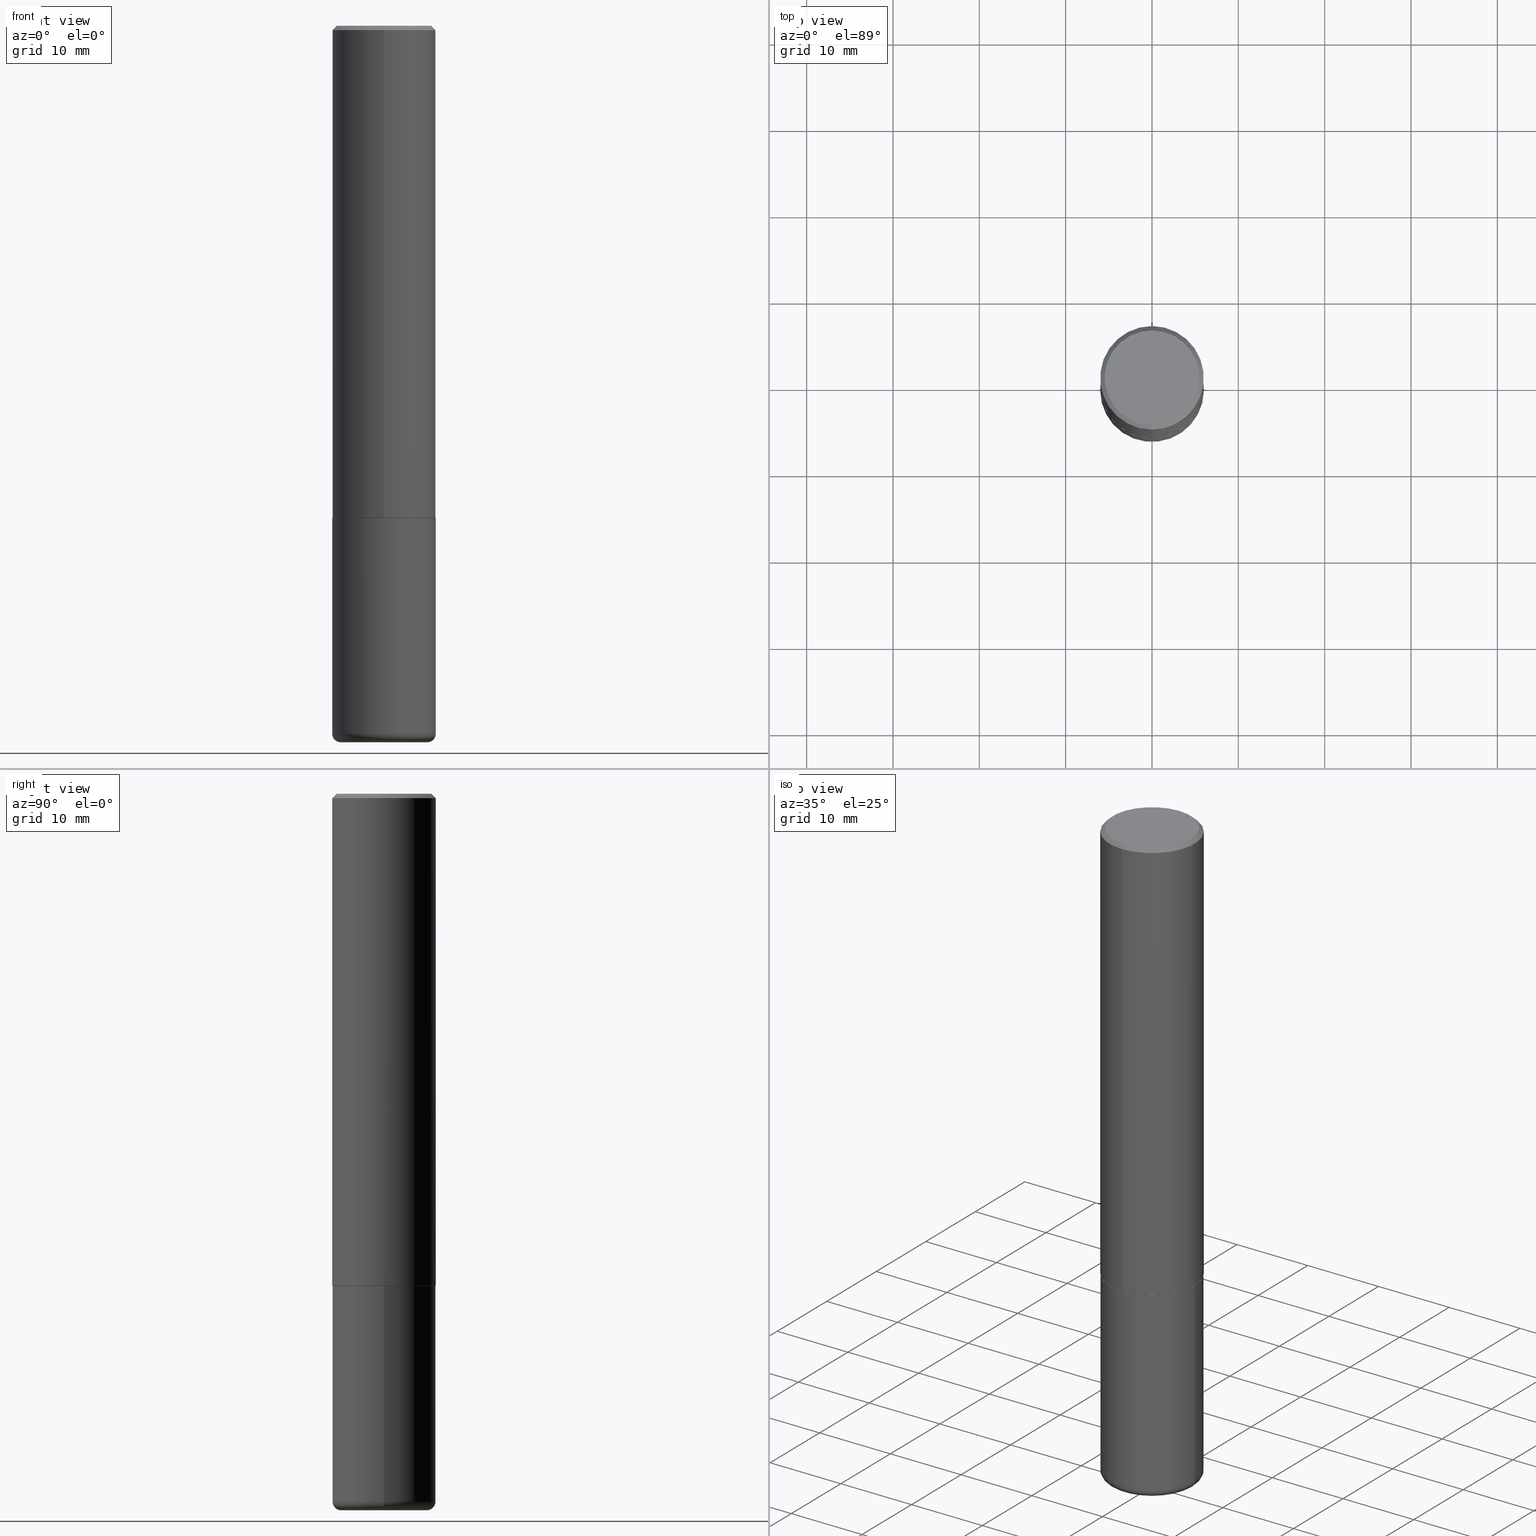
[diagram: canonical four-view strip — front | top / right | iso, engineering-drawing reading convention]
A machine part, canonical four-view strip (front | top / right | iso — engineering-drawing reading convention). The complete STEP part file that produces these views, byte-faithful:
ISO-10303-21;
HEADER;
FILE_DESCRIPTION (( 'STEP AP203' ),
    '1' );
FILE_NAME ('47130.STEP',
    '2024-03-05T21:50:02',
    ( '' ),
    ( '' ),
    'SwSTEP 2.0',
    'SolidWorks 2023',
    '' );
FILE_SCHEMA (( 'CONFIG_CONTROL_DESIGN' ));
ENDSEC;

DATA;
#1 = CARTESIAN_POINT ( 'NONE',  ( 5.484877041441908919E-29, -7.832535204696471708E-15, -2.243100000000000094 ) ) ;
#2 = EDGE_CURVE ( 'NONE', #218, #236, #267, .T. ) ;
#3 = CARTESIAN_POINT ( 'NONE',  ( -1.649375784469497117E-15, -0.2362000000000001598, 8.247714392355702416E-16 ) ) ;
#4 = AXIS2_PLACEMENT_3D ( 'NONE', #171, #114, #110 ) ;
#5 = DIRECTION ( 'NONE',  ( -6.982962677686265922E-15, -1.000000000000000000, 3.487819265831410167E-15 ) ) ;
#6 = DIRECTION ( 'NONE',  ( -2.445468806185136597E-29, 3.491481338843145583E-15, 1.000000000000000000 ) ) ;
#7 = ORIENTED_EDGE ( 'NONE', *, *, #96, .T. ) ;
#8 = DIRECTION ( 'NONE',  ( -2.445468806185136597E-29, 3.491481338843145583E-15, 1.000000000000000000 ) ) ;
#9 = AXIS2_PLACEMENT_3D ( 'NONE', #238, #6, #273 ) ;
#10 = ORIENTED_EDGE ( 'NONE', *, *, #332, .F. ) ;
#11 = DIRECTION ( 'NONE',  ( 1.000000000000000000, -6.982962677686269077E-15, 0.000000000000000000 ) ) ;
#12 = PRODUCT_DEFINITION ( 'UNKNOWN', '', #199, #276 ) ;
#13 = ORIENTED_EDGE ( 'NONE', *, *, #261, .F. ) ;
#14 = CARTESIAN_POINT ( 'NONE',  ( 0.2361999999999999933, -9.484609056967400443E-15, -2.244100000000000428 ) ) ;
#15 = ORIENTED_EDGE ( 'NONE', *, *, #278, .F. ) ;
#16 = ADVANCED_FACE ( 'NONE', ( #102 ), #63, .T. ) ;
#17 = LOCAL_TIME ( 16, 50, 2.000000000000000000, #227 ) ;
#18 = DIRECTION ( 'NONE',  ( 1.000000000000000000, 0.000000000000000000, 0.000000000000000000 ) ) ;
#19 = CARTESIAN_POINT ( 'NONE',  ( 5.487876547960065873E-29, -7.835233272497903917E-15, -2.244100000000000428 ) ) ;
#20 = SECURITY_CLASSIFICATION_LEVEL ( 'unclassified' ) ;
#21 = ORIENTED_EDGE ( 'NONE', *, *, #186, .T. ) ;
#22 = ADVANCED_FACE ( 'NONE', ( #228 ), #194, .T. ) ;
#23 = APPROVAL_DATE_TIME ( #387, #394 ) ;
#24 = DIRECTION ( 'NONE',  ( 1.000000000000000000, -6.982962677686267499E-15, 0.000000000000000000 ) ) ;
#25 = DATE_AND_TIME ( #91, #231 ) ;
#26 = DIRECTION ( 'NONE',  ( -2.445221809746292518E-29, 3.491835051801734308E-15, 1.000000000000000000 ) ) ;
#27 = LINE ( 'NONE', #163, #112 ) ;
#28 = ADVANCED_FACE ( 'NONE', ( #417 ), #162, .T. ) ;
#29 = AXIS2_PLACEMENT_3D ( 'NONE', #367, #201, #329 ) ;
#30 = DIRECTION ( 'NONE',  ( -2.445468806185136597E-29, 3.491481338843145583E-15, 1.000000000000000000 ) ) ;
#31 = DIRECTION ( 'NONE',  ( 2.445221809746291958E-29, -3.491835051801734702E-15, -1.000000000000000000 ) ) ;
#32 = PLANE ( 'NONE',  #184 ) ;
#33 = LINE ( 'NONE', #68, #271 ) ;
#34 = VECTOR ( 'NONE', #300, 39.37007874015748143 ) ;
#35 = DIRECTION ( 'NONE',  ( -2.445221809746292518E-29, 3.491835051801734702E-15, 1.000000000000000000 ) ) ;
#36 = ORIENTED_EDGE ( 'NONE', *, *, #125, .F. ) ;
#37 = DIRECTION ( 'NONE',  ( -2.445468806185136597E-29, 3.491481338843145583E-15, 1.000000000000000000 ) ) ;
#38 = ORIENTED_EDGE ( 'NONE', *, *, #155, .T. ) ;
#39 = CARTESIAN_POINT ( 'NONE',  ( -0.2362000000000000210, -9.593247264321970832E-15, -3.228299999999999947 ) ) ;
#40 = CONICAL_SURFACE ( 'NONE', #29, 0.2362000000000000766, 0.7853981633974480570 ) ;
#41 = ORIENTED_EDGE ( 'NONE', *, *, #195, .T. ) ;
#42 = APPLICATION_PROTOCOL_DEFINITION ( 'international standard', 'config_control_design', 1994, #128 ) ;
#43 = ADVANCED_FACE ( 'NONE', ( #299 ), #58, .T. ) ;
#44 = VERTEX_POINT ( 'NONE', #95 ) ;
#45 = DIRECTION ( 'NONE',  ( -2.445221809746292518E-29, 3.491835051801734308E-15, 1.000000000000000000 ) ) ;
#46 = APPLICATION_CONTEXT ( 'configuration controlled 3d designs of mechanical parts and assemblies' ) ;
#47 = CC_DESIGN_PERSON_AND_ORGANIZATION_ASSIGNMENT ( #324, #136, ( #12 ) ) ;
#48 = MECHANICAL_CONTEXT ( 'NONE', #128, 'mechanical' ) ;
#49 = UNCERTAINTY_MEASURE_WITH_UNIT (LENGTH_MEASURE( 1.000000000000000082E-05 ), #253, 'distance_accuracy_value', 'NONE');
#50 = VECTOR ( 'NONE', #175, 39.37007874015748143 ) ;
#51 = AXIS2_PLACEMENT_3D ( 'NONE', #404, #212, #78 ) ;
#52 = DIRECTION ( 'NONE',  ( -2.445221809746292518E-29, 3.491835051801734308E-15, 1.000000000000000000 ) ) ;
#53 = LINE ( 'NONE', #314, #216 ) ;
#54 = ORIENTED_EDGE ( 'NONE', *, *, #178, .F. ) ;
#55 = DATE_TIME_ROLE ( 'creation_date' ) ;
#56 = EDGE_CURVE ( 'NONE', #303, #388, #88, .T. ) ;
#57 = FACE_OUTER_BOUND ( 'NONE', #151, .T. ) ;
#58 = CONICAL_SURFACE ( 'NONE', #69, 0.2351999999999999924, 0.7853981633976873100 ) ;
#59 = CC_DESIGN_APPROVAL ( #394, ( #192 ) ) ;
#60 = APPROVAL_ROLE ( '' ) ;
#61 = CARTESIAN_POINT ( 'NONE',  ( 0.000000000000000000, 0.000000000000000000, 0.000000000000000000 ) ) ;
#62 = DATE_AND_TIME ( #349, #237 ) ;
#63 = PLANE ( 'NONE',  #159 ) ;
#64 = CARTESIAN_POINT ( 'NONE',  ( 4.890443619492597157E-31, -6.983670103603485970E-17, -0.02000000000000005246 ) ) ;
#65 = FACE_OUTER_BOUND ( 'NONE', #370, .T. ) ;
#66 = CARTESIAN_POINT ( 'NONE',  ( -1.649375784469443080E-15, -0.2362000000000080979, -2.243099999999999206 ) ) ;
#67 = CARTESIAN_POINT ( 'NONE',  ( 7.894706947007477118E-29, -1.127154920618732880E-14, -3.228299999999999947 ) ) ;
#68 = CARTESIAN_POINT ( 'NONE',  ( -1.642392821791754699E-15, -0.2352000000000078195, -2.244099999999999095 ) ) ;
#69 = AXIS2_PLACEMENT_3D ( 'NONE', #290, #350, #132 ) ;
#70 = AXIS2_PLACEMENT_3D ( 'NONE', #375, #343, #18 ) ;
#71 = ORIENTED_EDGE ( 'NONE', *, *, #96, .F. ) ;
#72 = ADVANCED_FACE ( 'NONE', ( #57 ), #307, .T. ) ;
#73 = CARTESIAN_POINT ( 'NONE',  ( 5.487322263251655570E-29, -7.836027039748271518E-15, -2.244099999999999984 ) ) ;
#74 = ORIENTED_EDGE ( 'NONE', *, *, #108, .T. ) ;
#75 = EDGE_CURVE ( 'NONE', #89, #303, #137, .T. ) ;
#76 = FACE_OUTER_BOUND ( 'NONE', #146, .T. ) ;
#77 = ORIENTED_EDGE ( 'NONE', *, *, #203, .F. ) ;
#78 = DIRECTION ( 'NONE',  ( -6.982962677686265133E-15, -1.000000000000000000, 3.484499991918703113E-15 ) ) ;
#79 = EDGE_CURVE ( 'NONE', #236, #388, #27, .T. ) ;
#80 = AXIS2_PLACEMENT_3D ( 'NONE', #280, #182, #282 ) ;
#81 = EDGE_LOOP ( 'NONE', ( #54, #99, #270, #113 ) ) ;
#82 = DIRECTION ( 'NONE',  ( -2.445468806185136877E-29, 3.491481338843145188E-15, 1.000000000000000000 ) ) ;
#83 = ADVANCED_FACE ( 'NONE', ( #193 ), #167, .T. ) ;
#84 = ADVANCED_BREP_SHAPE_REPRESENTATION ( '47130', ( #372, #93, #70 ), #217 ) ;
#85 = FACE_OUTER_BOUND ( 'NONE', #208, .T. ) ;
#86 = CARTESIAN_POINT ( 'NONE',  ( 7.894706947007477118E-29, -1.127154920618732880E-14, -3.228299999999999947 ) ) ;
#87 = TOROIDAL_SURFACE ( 'NONE', #312, 0.1968000000000000027, 0.03940000000000005997 ) ;
#88 = CIRCLE ( 'NONE', #413, 0.2362000000000000766 ) ;
#89 = VERTEX_POINT ( 'NONE', #263 ) ;
#90 = ADVANCED_FACE ( 'NONE', ( #65 ), #200, .F. ) ;
#91 = CALENDAR_DATE ( 2024, 5, 3 ) ;
#92 = CARTESIAN_POINT ( 'NONE',  ( 7.991058417971171713E-29, -1.140911357093774644E-14, -3.267700000000000049 ) ) ;
#93 = MANIFOLD_SOLID_BREP ( 'Body-Move/Copy2[2]', #223 ) ;
#94 = PERSON_AND_ORGANIZATION ( #214, #141 ) ;
#95 = CARTESIAN_POINT ( 'NONE',  ( 0.1968000000000000027, -1.278336062590640454E-14, -3.267700000000000049 ) ) ;
#96 = EDGE_CURVE ( 'NONE', #44, #283, #198, .T. ) ;
#97 = AXIS2_PLACEMENT_3D ( 'NONE', #411, #104, #356 ) ;
#98 = AXIS2_PLACEMENT_3D ( 'NONE', #19, #153, #11 ) ;
#99 = ORIENTED_EDGE ( 'NONE', *, *, #248, .T. ) ;
#100 = EDGE_CURVE ( 'NONE', #407, #236, #160, .T. ) ;
#101 = SHAPE_DEFINITION_REPRESENTATION ( #245, #84 ) ;
#102 = FACE_OUTER_BOUND ( 'NONE', #241, .T. ) ;
#103 = PERSON_AND_ORGANIZATION ( #214, #141 ) ;
#104 = DIRECTION ( 'NONE',  ( -2.445221809746292518E-29, 3.491835051801734308E-15, 1.000000000000000000 ) ) ;
#105 = AXIS2_PLACEMENT_3D ( 'NONE', #67, #330, #202 ) ;
#106 = LOCAL_TIME ( 16, 50, 2.000000000000000000, #289 ) ;
#107 = FACE_OUTER_BOUND ( 'NONE', #258, .T. ) ;
#108 = EDGE_CURVE ( 'NONE', #166, #218, #33, .T. ) ;
#109 = DIRECTION ( 'NONE',  ( -2.445221809746291958E-29, 3.491835051801734702E-15, 1.000000000000000000 ) ) ;
#110 = DIRECTION ( 'NONE',  ( -1.000000000000000000, 6.982962677686265922E-15, -4.876176775795935793E-29 ) ) ;
#111 = FACE_OUTER_BOUND ( 'NONE', #130, .T. ) ;
#112 = VECTOR ( 'NONE', #265, 39.37007874015748143 ) ;
#113 = ORIENTED_EDGE ( 'NONE', *, *, #359, .F. ) ;
#114 = DIRECTION ( 'NONE',  ( 2.438088387897960049E-29, -3.491481338843145188E-15, -1.000000000000000000 ) ) ;
#115 = ORIENTED_EDGE ( 'NONE', *, *, #168, .T. ) ;
#116 = CARTESIAN_POINT ( 'NONE',  ( 1.579546157692633621E-15, 0.2161999999999999478, -6.694880156558795861E-16 ) ) ;
#117 = ORIENTED_EDGE ( 'NONE', *, *, #2, .T. ) ;
#118 = CC_DESIGN_PERSON_AND_ORGANIZATION_ASSIGNMENT ( #103, #293, ( #199 ) ) ;
#119 = AXIS2_PLACEMENT_3D ( 'NONE', #61, #30, #127 ) ;
#120 = DIRECTION ( 'NONE',  ( -1.000000000000000000, 7.105427357601014480E-15, 0.000000000000000000 ) ) ;
#121 = CARTESIAN_POINT ( 'NONE',  ( 7.894706947007477118E-29, -1.127154920618732880E-14, -3.228299999999999947 ) ) ;
#122 = EDGE_CURVE ( 'NONE', #348, #388, #142, .T. ) ;
#123 = CARTESIAN_POINT ( 'NONE',  ( -2.089361895350857775E-45, 2.983658608395124733E-31, 8.544672254365514246E-17 ) ) ;
#124 = ORIENTED_EDGE ( 'NONE', *, *, #122, .T. ) ;
#125 = EDGE_CURVE ( 'NONE', #218, #303, #390, .T. ) ;
#126 = CC_DESIGN_APPROVAL ( #172, ( #199 ) ) ;
#127 = DIRECTION ( 'NONE',  ( 1.000000000000000000, -6.982962677686266711E-15, 4.876176775795936353E-29 ) ) ;
#128 = APPLICATION_CONTEXT ( 'configuration controlled 3d designs of mechanical parts and assemblies' ) ;
#129 = PERSON_AND_ORGANIZATION_ROLE ( 'design_owner' ) ;
#130 = EDGE_LOOP ( 'NONE', ( #15, #149, #365, #156 ) ) ;
#131 = CALENDAR_DATE ( 2024, 5, 3 ) ;
#132 = DIRECTION ( 'NONE',  ( -6.982962677686265133E-15, -1.000000000000000000, 3.484499991918703113E-15 ) ) ;
#133 = APPROVAL_PERSON_ORGANIZATION ( #165, #346, #60 ) ;
#134 = DATE_AND_TIME ( #297, #106 ) ;
#135 = DIRECTION ( 'NONE',  ( -6.982962677686265922E-15, -1.000000000000000000, 3.491835051801734308E-15 ) ) ;
#136 = PERSON_AND_ORGANIZATION_ROLE ( 'creator' ) ;
#137 = LINE ( 'NONE', #260, #331 ) ;
#138 = DIRECTION ( 'NONE',  ( -6.982962677686265922E-15, -1.000000000000000000, 3.469747663417773058E-15 ) ) ;
#139 = ADVANCED_FACE ( 'NONE', ( #76 ), #362, .T. ) ;
#140 = AXIS2_PLACEMENT_3D ( 'NONE', #328, #31, #256 ) ;
#141 = ORGANIZATION ( 'UNSPECIFIED', 'UNSPECIFIED', '' ) ;
#142 = LINE ( 'NONE', #399, #50 ) ;
#143 = EDGE_CURVE ( 'NONE', #388, #303, #272, .T. ) ;
#144 = PLANE ( 'NONE',  #4 ) ;
#145 = DIRECTION ( 'NONE',  ( -2.445221809746292518E-29, 3.491835051801734308E-15, 1.000000000000000000 ) ) ;
#146 = EDGE_LOOP ( 'NONE', ( #179, #298, #286, #13 ) ) ;
#147 = LINE ( 'NONE', #338, #351 ) ;
#148 = CIRCLE ( 'NONE', #185, 0.03940000000000005997 ) ;
#149 = ORIENTED_EDGE ( 'NONE', *, *, #75, .T. ) ;
#150 = CARTESIAN_POINT ( 'NONE',  ( 1.649375784469496920E-15, 0.2361999999999999933, -0.02000000000000087472 ) ) ;
#151 = EDGE_LOOP ( 'NONE', ( #402, #355, #124, #274 ) ) ;
#152 = ADVANCED_FACE ( 'NONE', ( #107 ), #87, .T. ) ;
#153 = DIRECTION ( 'NONE',  ( -2.445468806185136597E-29, 3.491481338843145583E-15, 1.000000000000000000 ) ) ;
#154 = ADVANCED_FACE ( 'NONE', ( #235 ), #144, .F. ) ;
#155 = EDGE_CURVE ( 'NONE', #44, #210, #262, .T. ) ;
#156 = ORIENTED_EDGE ( 'NONE', *, *, #122, .F. ) ;
#157 = PERSON_AND_ORGANIZATION ( #214, #141 ) ;
#158 = ORIENTED_EDGE ( 'NONE', *, *, #418, .F. ) ;
#159 = AXIS2_PLACEMENT_3D ( 'NONE', #92, #352, #323 ) ;
#160 = LINE ( 'NONE', #409, #34 ) ;
#161 = APPLICATION_PROTOCOL_DEFINITION ( 'international standard', 'config_control_design', 1994, #46 ) ;
#162 = CYLINDRICAL_SURFACE ( 'NONE', #119, 0.2361999999999999933 ) ;
#163 = CARTESIAN_POINT ( 'NONE',  ( 1.678301941865357577E-15, 0.2362000000000001598, -8.247714392355702416E-16 ) ) ;
#164 = CIRCLE ( 'NONE', #230, 0.2362000000000002709 ) ;
#165 = PERSON_AND_ORGANIZATION ( #214, #141 ) ;
#166 = VERTEX_POINT ( 'NONE', #240 ) ;
#167 = CYLINDRICAL_SURFACE ( 'NONE', #377, 0.2362000000000001598 ) ;
#168 = EDGE_CURVE ( 'NONE', #210, #44, #364, .T. ) ;
#169 = CARTESIAN_POINT ( 'NONE',  ( 5.487322263251655570E-29, -7.836027039748273096E-15, -2.244100000000000428 ) ) ;
#170 = AXIS2_PLACEMENT_3D ( 'NONE', #73, #145, #268 ) ;
#171 = CARTESIAN_POINT ( 'NONE',  ( 5.487876547960065873E-29, -7.835233272497903917E-15, -2.244100000000000428 ) ) ;
#172 = APPROVAL ( #408, 'UNSPECIFIED' ) ;
#173 = CARTESIAN_POINT ( 'NONE',  ( 4.890443619492597157E-31, -6.983670103603485970E-17, -0.02000000000000005246 ) ) ;
#174 = ORIENTED_EDGE ( 'NONE', *, *, #195, .F. ) ;
#175 = DIRECTION ( 'NONE',  ( 4.937700262164546464E-15, 0.7071067811865449082, -0.7071067811865501263 ) ) ;
#176 = EDGE_LOOP ( 'NONE', ( #38, #321, #158, #71 ) ) ;
#177 = CARTESIAN_POINT ( 'NONE',  ( -2.089361895350857775E-45, 2.983658608395124733E-31, 8.544672254365514246E-17 ) ) ;
#178 = EDGE_CURVE ( 'NONE', #181, #405, #147, .T. ) ;
#179 = ORIENTED_EDGE ( 'NONE', *, *, #418, .T. ) ;
#180 = CARTESIAN_POINT ( 'NONE',  ( 1.674749228186611702E-15, 0.2351999999999921653, -2.244100000000000872 ) ) ;
#181 = VERTEX_POINT ( 'NONE', #39 ) ;
#182 = DIRECTION ( 'NONE',  ( -2.445468806185136597E-29, 3.491481338843145583E-15, 1.000000000000000000 ) ) ;
#183 = CARTESIAN_POINT ( 'NONE',  ( -1.620449627073635473E-15, -0.2362000000000001321, -0.01999999999999922673 ) ) ;
#184 = AXIS2_PLACEMENT_3D ( 'NONE', #169, #109, #233 ) ;
#185 = AXIS2_PLACEMENT_3D ( 'NONE', #311, #247, #120 ) ;
#186 = EDGE_CURVE ( 'NONE', #348, #89, #279, .T. ) ;
#187 = DIRECTION ( 'NONE',  ( -6.982962677686265133E-15, -1.000000000000000000, 3.484499991918703113E-15 ) ) ;
#188 = ORIENTED_EDGE ( 'NONE', *, *, #344, .T. ) ;
#189 = PERSON_AND_ORGANIZATION_ROLE ( 'classification_officer' ) ;
#190 = CARTESIAN_POINT ( 'NONE',  ( 0.1968000000000000027, -1.264579626115598374E-14, -3.228299999999999947 ) ) ;
#191 = AXIS2_PLACEMENT_3D ( 'NONE', #269, #393, #369 ) ;
#192 = SECURITY_CLASSIFICATION ( '', '', #20 ) ;
#193 = FACE_OUTER_BOUND ( 'NONE', #306, .T. ) ;
#194 = CYLINDRICAL_SURFACE ( 'NONE', #97, 0.2362000000000001598 ) ;
#195 = EDGE_CURVE ( 'NONE', #407, #166, #406, .T. ) ;
#196 = DATE_TIME_ROLE ( 'classification_date' ) ;
#197 = CARTESIAN_POINT ( 'NONE',  ( 4.890443619492597157E-31, -6.983670103603485970E-17, -0.02000000000000005246 ) ) ;
#198 = CIRCLE ( 'NONE', #373, 0.03940000000000005997 ) ;
#199 = PRODUCT_DEFINITION_FORMATION_WITH_SPECIFIED_SOURCE ( 'ANY', '', #275, .NOT_KNOWN. ) ;
#200 = PLANE ( 'NONE',  #140 ) ;
#201 = DIRECTION ( 'NONE',  ( 2.445221809746292518E-29, -3.491835051801734308E-15, -1.000000000000000000 ) ) ;
#202 = DIRECTION ( 'NONE',  ( 1.000000000000000000, -6.982962677686265133E-15, 0.000000000000000000 ) ) ;
#203 = EDGE_CURVE ( 'NONE', #236, #218, #164, .T. ) ;
#204 = AXIS2_PLACEMENT_3D ( 'NONE', #229, #225, #357 ) ;
#205 = DIRECTION ( 'NONE',  ( -6.982962677686265922E-15, -1.000000000000000000, 3.491835051801733913E-15 ) ) ;
#206 = ORIENTED_EDGE ( 'NONE', *, *, #203, .T. ) ;
#207 = DIRECTION ( 'NONE',  ( -4.937700262165728178E-15, -0.7071067811867141062, 0.7071067811863809283 ) ) ;
#208 = EDGE_LOOP ( 'NONE', ( #371, #400, #277, #342 ) ) ;
#209 = DIRECTION ( 'NONE',  ( 1.000000000000000000, -6.982962677686271444E-15, 0.000000000000000000 ) ) ;
#210 = VERTEX_POINT ( 'NONE', #266 ) ;
#211 = ORIENTED_EDGE ( 'NONE', *, *, #79, .F. ) ;
#212 = DIRECTION ( 'NONE',  ( -2.445221809746292518E-29, 3.491835051801734308E-15, 1.000000000000000000 ) ) ;
#213 = LENGTH_MEASURE_WITH_UNIT ( LENGTH_MEASURE( 0.02539999999999999897 ), #341 );
#214 = PERSON ( 'UNSPECIFIED', 'UNSPECIFIED', 'UNSPECIFIED', ('UNSPECIFIED'), ('UNSPECIFIED'), ('UNSPECIFIED') ) ;
#215 = CARTESIAN_POINT ( 'NONE',  ( -0.2361999999999999933, -7.875089297477259967E-15, -2.244100000000000428 ) ) ;
#216 = VECTOR ( 'NONE', #82, 39.37007874015748143 ) ;
#217 =( GEOMETRIC_REPRESENTATION_CONTEXT ( 3 ) GLOBAL_UNCERTAINTY_ASSIGNED_CONTEXT ( ( #49 ) ) GLOBAL_UNIT_ASSIGNED_CONTEXT ( ( #253, #242, #378 ) ) REPRESENTATION_CONTEXT ( 'NONE', 'WORKASPACE' ) );
#218 = VERTEX_POINT ( 'NONE', #66 ) ;
#219 = COORDINATED_UNIVERSAL_TIME_OFFSET ( 5, 0, .BEHIND. ) ;
#220 = ORIENTED_EDGE ( 'NONE', *, *, #143, .F. ) ;
#221 = CC_DESIGN_PERSON_AND_ORGANIZATION_ASSIGNMENT ( #259, #129, ( #275 ) ) ;
#222 = DIRECTION ( 'NONE',  ( 6.982962677686265922E-15, 1.000000000000000000, -3.487819265831410167E-15 ) ) ;
#223 = CLOSED_SHELL ( 'NONE', ( #415, #22, #226, #72, #83, #43, #234, #90 ) ) ;
#224 = PERSON_AND_ORGANIZATION_ROLE ( 'design_supplier' ) ;
#225 = DIRECTION ( 'NONE',  ( -2.445221809746292518E-29, 3.491835051801734308E-15, 1.000000000000000000 ) ) ;
#226 = ADVANCED_FACE ( 'NONE', ( #111 ), #40, .T. ) ;
#227 = COORDINATED_UNIVERSAL_TIME_OFFSET ( 5, 0, .BEHIND. ) ;
#228 = FACE_OUTER_BOUND ( 'NONE', #335, .T. ) ;
#229 = CARTESIAN_POINT ( 'NONE',  ( 5.484877041441908919E-29, -7.832535204696471708E-15, -2.243100000000000094 ) ) ;
#230 = AXIS2_PLACEMENT_3D ( 'NONE', #1, #395, #138 ) ;
#231 = LOCAL_TIME ( 16, 50, 2.000000000000000000, #412 ) ;
#232 = DIRECTION ( 'NONE',  ( 1.000000000000000000, -6.982962677686270655E-15, 4.883557194083114583E-29 ) ) ;
#233 = DIRECTION ( 'NONE',  ( -6.982962677686265922E-15, -1.000000000000000000, 3.491835051801734702E-15 ) ) ;
#234 = ADVANCED_FACE ( 'NONE', ( #392 ), #32, .F. ) ;
#235 = FACE_OUTER_BOUND ( 'NONE', #309, .T. ) ;
#236 = VERTEX_POINT ( 'NONE', #361 ) ;
#237 = LOCAL_TIME ( 16, 50, 2.000000000000000000, #257 ) ;
#238 = CARTESIAN_POINT ( 'NONE',  ( 0.000000000000000000, 0.000000000000000000, 0.000000000000000000 ) ) ;
#239 = ORIENTED_EDGE ( 'NONE', *, *, #125, .T. ) ;
#240 = CARTESIAN_POINT ( 'NONE',  ( -1.642392821791754699E-15, -0.2352000000000078195, -2.244099999999999095 ) ) ;
#241 = EDGE_LOOP ( 'NONE', ( #255, #317 ) ) ;
#242 =( NAMED_UNIT ( * ) PLANE_ANGLE_UNIT ( ) SI_UNIT ( $, .RADIAN. ) );
#243 = DIMENSIONAL_EXPONENTS ( 1.000000000000000000, 0.000000000000000000, 0.000000000000000000, 0.000000000000000000, 0.000000000000000000, 0.000000000000000000, 0.000000000000000000 ) ;
#244 = EDGE_LOOP ( 'NONE', ( #383, #41, #74, #77 ) ) ;
#245 = PRODUCT_DEFINITION_SHAPE ( 'NONE', 'NONE',  #12 ) ;
#246 = VECTOR ( 'NONE', #35, 39.37007874015748143 ) ;
#247 = DIRECTION ( 'NONE',  ( 7.105427357601001859E-15, 1.000000000000000000, -3.491481338843145583E-15 ) ) ;
#248 = EDGE_CURVE ( 'NONE', #181, #283, #285, .T. ) ;
#249 = CC_DESIGN_SECURITY_CLASSIFICATION ( #192, ( #199 ) ) ;
#250 = DIRECTION ( 'NONE',  ( -2.445468806185136597E-29, 3.491481338843145583E-15, 1.000000000000000000 ) ) ;
#251 = ADVANCED_FACE ( 'NONE', ( #347 ), #396, .T. ) ;
#252 = CARTESIAN_POINT ( 'NONE',  ( 5.487322263251655570E-29, -7.836027039748271518E-15, -2.244099999999999984 ) ) ;
#253 =( CONVERSION_BASED_UNIT ( 'INCH', #213 ) LENGTH_UNIT ( ) NAMED_UNIT ( #243 ) );
#254 = AXIS2_PLACEMENT_3D ( 'NONE', #173, #336, #5 ) ;
#255 = ORIENTED_EDGE ( 'NONE', *, *, #155, .F. ) ;
#256 = DIRECTION ( 'NONE',  ( 6.982962677686265922E-15, 1.000000000000000000, -3.491835051801734702E-15 ) ) ;
#257 = COORDINATED_UNIVERSAL_TIME_OFFSET ( 5, 0, .BEHIND. ) ;
#258 = EDGE_LOOP ( 'NONE', ( #10, #115, #7, #292 ) ) ;
#259 = PERSON_AND_ORGANIZATION ( #214, #141 ) ;
#260 = CARTESIAN_POINT ( 'NONE',  ( -1.620449627073635473E-15, -0.2362000000000001321, -0.01999999999999922673 ) ) ;
#261 = EDGE_CURVE ( 'NONE', #283, #325, #53, .T. ) ;
#262 = CIRCLE ( 'NONE', #295, 0.1968000000000000027 ) ;
#263 = CARTESIAN_POINT ( 'NONE',  ( -1.551844647095920142E-15, -0.2161999999999999478, 8.403814607431897971E-16 ) ) ;
#264 = PERSON_AND_ORGANIZATION ( #214, #141 ) ;
#265 = DIRECTION ( 'NONE',  ( -2.445221809746292518E-29, 3.491835051801734702E-15, 1.000000000000000000 ) ) ;
#266 = CARTESIAN_POINT ( 'NONE',  ( -0.1968000000000000027, -9.802006365641922115E-15, -3.267700000000000049 ) ) ;
#267 = CIRCLE ( 'NONE', #204, 0.2362000000000002709 ) ;
#268 = DIRECTION ( 'NONE',  ( -6.982962677686265133E-15, -1.000000000000000000, 3.484499991918703113E-15 ) ) ;
#269 = CARTESIAN_POINT ( 'NONE',  ( 7.991058417971171713E-29, -1.140911357093774644E-14, -3.267700000000000049 ) ) ;
#270 = ORIENTED_EDGE ( 'NONE', *, *, #261, .T. ) ;
#271 = VECTOR ( 'NONE', #207, 39.37007874015748143 ) ;
#272 = CIRCLE ( 'NONE', #254, 0.2362000000000000766 ) ;
#273 = DIRECTION ( 'NONE',  ( 1.000000000000000000, -6.982962677686266711E-15, 4.876176775795936353E-29 ) ) ;
#274 = ORIENTED_EDGE ( 'NONE', *, *, #143, .T. ) ;
#275 = PRODUCT ( '47130', '47130', '', ( #48 ) ) ;
#276 = DESIGN_CONTEXT ( 'detailed design', #46, 'design' ) ;
#277 = ORIENTED_EDGE ( 'NONE', *, *, #2, .F. ) ;
#278 = EDGE_CURVE ( 'NONE', #89, #348, #313, .T. ) ;
#279 = CIRCLE ( 'NONE', #358, 0.2161999999999999478 ) ;
#280 = CARTESIAN_POINT ( 'NONE',  ( 5.487876547960065873E-29, -7.835233272497903917E-15, -2.244100000000000428 ) ) ;
#281 = DIRECTION ( 'NONE',  ( -2.445468806185136597E-29, 3.491481338843145583E-15, 1.000000000000000000 ) ) ;
#282 = DIRECTION ( 'NONE',  ( 1.000000000000000000, -6.982962677686269077E-15, 0.000000000000000000 ) ) ;
#283 = VERTEX_POINT ( 'NONE', #403 ) ;
#284 = CALENDAR_DATE ( 2024, 5, 3 ) ;
#285 = CIRCLE ( 'NONE', #105, 0.2361999999999999933 ) ;
#286 = ORIENTED_EDGE ( 'NONE', *, *, #344, .F. ) ;
#287 = CIRCLE ( 'NONE', #345, 0.2351999999999999924 ) ;
#288 = CC_DESIGN_DATE_AND_TIME_ASSIGNMENT ( #134, #196, ( #192 ) ) ;
#289 = COORDINATED_UNIVERSAL_TIME_OFFSET ( 5, 0, .BEHIND. ) ;
#290 = CARTESIAN_POINT ( 'NONE',  ( 5.487322263251655570E-29, -7.836027039748271518E-15, -2.244099999999999984 ) ) ;
#291 = PERSON_AND_ORGANIZATION ( #214, #141 ) ;
#292 = ORIENTED_EDGE ( 'NONE', *, *, #248, .F. ) ;
#293 = PERSON_AND_ORGANIZATION_ROLE ( 'creator' ) ;
#294 = DIRECTION ( 'NONE',  ( 2.445221809746292518E-29, -3.491835051801734308E-15, -1.000000000000000000 ) ) ;
#295 = AXIS2_PLACEMENT_3D ( 'NONE', #304, #8, #209 ) ;
#296 = AXIS2_PLACEMENT_3D ( 'NONE', #121, #250, #376 ) ;
#297 = CALENDAR_DATE ( 2024, 5, 3 ) ;
#298 = ORIENTED_EDGE ( 'NONE', *, *, #178, .T. ) ;
#299 = FACE_OUTER_BOUND ( 'NONE', #244, .T. ) ;
#300 = DIRECTION ( 'NONE',  ( 5.024295867789263036E-15, 0.7071067811867189912, 0.7071067811863760433 ) ) ;
#301 = EDGE_CURVE ( 'NONE', #166, #407, #287, .T. ) ;
#302 = DIRECTION ( 'NONE',  ( -2.445468806185136877E-29, 3.491481338843145188E-15, 1.000000000000000000 ) ) ;
#303 = VERTEX_POINT ( 'NONE', #183 ) ;
#304 = CARTESIAN_POINT ( 'NONE',  ( 7.991058417971171713E-29, -1.140911357093774644E-14, -3.267700000000000049 ) ) ;
#305 = CC_DESIGN_DATE_AND_TIME_ASSIGNMENT ( #25, #55, ( #12 ) ) ;
#306 = EDGE_LOOP ( 'NONE', ( #211, #206, #239, #220 ) ) ;
#307 = CONICAL_SURFACE ( 'NONE', #319, 0.2362000000000000766, 0.7853981633974480570 ) ;
#308 = DIRECTION ( 'NONE',  ( -6.982962677686265922E-15, -1.000000000000000000, 3.491835051801733913E-15 ) ) ;
#309 = EDGE_LOOP ( 'NONE', ( #188, #339 ) ) ;
#310 = EDGE_LOOP ( 'NONE', ( #368, #174 ) ) ;
#311 = CARTESIAN_POINT ( 'NONE',  ( -0.1968000000000000027, -9.873201102211451027E-15, -3.228299999999999947 ) ) ;
#312 = AXIS2_PLACEMENT_3D ( 'NONE', #360, #37, #232 ) ;
#313 = CIRCLE ( 'NONE', #366, 0.2161999999999999478 ) ;
#314 = CARTESIAN_POINT ( 'NONE',  ( 0.2361999999999999933, -1.649375784469496131E-15, 1.151752954443000088E-29 ) ) ;
#315 = APPROVAL_ROLE ( '' ) ;
#316 = CC_DESIGN_PERSON_AND_ORGANIZATION_ASSIGNMENT ( #94, #224, ( #199 ) ) ;
#317 = ORIENTED_EDGE ( 'NONE', *, *, #168, .F. ) ;
#318 = APPROVAL_STATUS ( 'not_yet_approved' ) ;
#319 = AXIS2_PLACEMENT_3D ( 'NONE', #197, #294, #222 ) ;
#320 = DIRECTION ( 'NONE',  ( -6.982962677686265922E-15, -1.000000000000000000, 3.487819265831410167E-15 ) ) ;
#321 = ORIENTED_EDGE ( 'NONE', *, *, #332, .T. ) ;
#322 = PRODUCT_RELATED_PRODUCT_CATEGORY ( 'detail', '', ( #275 ) ) ;
#323 = DIRECTION ( 'NONE',  ( -1.000000000000000000, 6.982962677686265922E-15, -4.876176775795935793E-29 ) ) ;
#324 = PERSON_AND_ORGANIZATION ( #214, #141 ) ;
#325 = VERTEX_POINT ( 'NONE', #14 ) ;
#326 = CONICAL_SURFACE ( 'NONE', #51, 0.2351999999999999924, 0.7853981633976873100 ) ;
#327 = LOCAL_TIME ( 16, 50, 2.000000000000000000, #219 ) ;
#328 = CARTESIAN_POINT ( 'NONE',  ( 1.509716530915770323E-15, 0.2161999999999999478, -7.122113769277070896E-16 ) ) ;
#329 = DIRECTION ( 'NONE',  ( 6.982962677686265922E-15, 1.000000000000000000, -3.487819265831410167E-15 ) ) ;
#330 = DIRECTION ( 'NONE',  ( -2.445468806185136597E-29, 3.491481338843145583E-15, 1.000000000000000000 ) ) ;
#331 = VECTOR ( 'NONE', #385, 39.37007874015748143 ) ;
#332 = EDGE_CURVE ( 'NONE', #210, #181, #148, .T. ) ;
#333 = CIRCLE ( 'NONE', #296, 0.2361999999999999933 ) ;
#334 = DIRECTION ( 'NONE',  ( -2.445221809746292518E-29, 3.491835051801734308E-15, 1.000000000000000000 ) ) ;
#335 = EDGE_LOOP ( 'NONE', ( #117, #337, #379, #36 ) ) ;
#336 = DIRECTION ( 'NONE',  ( -2.445221809746292518E-29, 3.491835051801734308E-15, 1.000000000000000000 ) ) ;
#337 = ORIENTED_EDGE ( 'NONE', *, *, #79, .T. ) ;
#338 = CARTESIAN_POINT ( 'NONE',  ( -0.2361999999999999933, 1.678301941865356591E-15, -1.161852468318208757E-29 ) ) ;
#339 = ORIENTED_EDGE ( 'NONE', *, *, #359, .T. ) ;
#340 = AXIS2_PLACEMENT_3D ( 'NONE', #86, #281, #401 ) ;
#341 =( LENGTH_UNIT ( ) NAMED_UNIT ( * ) SI_UNIT ( $, .METRE. ) );
#342 = ORIENTED_EDGE ( 'NONE', *, *, #108, .F. ) ;
#343 = DIRECTION ( 'NONE',  ( 0.000000000000000000, 0.000000000000000000, 1.000000000000000000 ) ) ;
#344 = EDGE_CURVE ( 'NONE', #325, #405, #386, .T. ) ;
#345 = AXIS2_PLACEMENT_3D ( 'NONE', #252, #52, #187 ) ;
#346 = APPROVAL ( #380, 'UNSPECIFIED' ) ;
#347 = FACE_OUTER_BOUND ( 'NONE', #176, .T. ) ;
#348 = VERTEX_POINT ( 'NONE', #116 ) ;
#349 = CALENDAR_DATE ( 2024, 5, 3 ) ;
#350 = DIRECTION ( 'NONE',  ( -2.445221809746292518E-29, 3.491835051801734308E-15, 1.000000000000000000 ) ) ;
#351 = VECTOR ( 'NONE', #302, 39.37007874015748143 ) ;
#352 = DIRECTION ( 'NONE',  ( 2.438088387897960049E-29, -3.491481338843145188E-15, -1.000000000000000000 ) ) ;
#353 = APPROVAL_PERSON_ORGANIZATION ( #264, #394, #315 ) ;
#354 = DATE_AND_TIME ( #284, #327 ) ;
#355 = ORIENTED_EDGE ( 'NONE', *, *, #186, .F. ) ;
#356 = DIRECTION ( 'NONE',  ( -6.982962677686265922E-15, -1.000000000000000000, 3.491835051801734308E-15 ) ) ;
#357 = DIRECTION ( 'NONE',  ( -6.982962677686265922E-15, -1.000000000000000000, 3.469747663417773058E-15 ) ) ;
#358 = AXIS2_PLACEMENT_3D ( 'NONE', #177, #334, #205 ) ;
#359 = EDGE_CURVE ( 'NONE', #405, #325, #374, .T. ) ;
#360 = CARTESIAN_POINT ( 'NONE',  ( 7.894706947007477118E-29, -1.127154920618732880E-14, -3.228299999999999947 ) ) ;
#361 = CARTESIAN_POINT ( 'NONE',  ( 1.678301941865385779E-15, 0.2361999999999924715, -2.243100000000000982 ) ) ;
#362 = CYLINDRICAL_SURFACE ( 'NONE', #9, 0.2361999999999999933 ) ;
#363 = CC_DESIGN_PERSON_AND_ORGANIZATION_ASSIGNMENT ( #157, #189, ( #192 ) ) ;
#364 = CIRCLE ( 'NONE', #191, 0.1968000000000000027 ) ;
#365 = ORIENTED_EDGE ( 'NONE', *, *, #56, .T. ) ;
#366 = AXIS2_PLACEMENT_3D ( 'NONE', #123, #45, #308 ) ;
#367 = CARTESIAN_POINT ( 'NONE',  ( 4.890443619492597157E-31, -6.983670103603485970E-17, -0.02000000000000005246 ) ) ;
#368 = ORIENTED_EDGE ( 'NONE', *, *, #301, .F. ) ;
#369 = DIRECTION ( 'NONE',  ( 1.000000000000000000, -6.982962677686271444E-15, 0.000000000000000000 ) ) ;
#370 = EDGE_LOOP ( 'NONE', ( #21, #397 ) ) ;
#371 = ORIENTED_EDGE ( 'NONE', *, *, #301, .T. ) ;
#372 = MANIFOLD_SOLID_BREP ( 'Body-Move/Copy2[1]', #391 ) ;
#373 = AXIS2_PLACEMENT_3D ( 'NONE', #190, #381, #24 ) ;
#374 = CIRCLE ( 'NONE', #98, 0.2361999999999999933 ) ;
#375 = CARTESIAN_POINT ( 'NONE',  ( 0.000000000000000000, 0.000000000000000000, 0.000000000000000000 ) ) ;
#376 = DIRECTION ( 'NONE',  ( 1.000000000000000000, -6.982962677686265133E-15, 0.000000000000000000 ) ) ;
#377 = AXIS2_PLACEMENT_3D ( 'NONE', #414, #389, #135 ) ;
#378 =( NAMED_UNIT ( * ) SI_UNIT ( $, .STERADIAN. ) SOLID_ANGLE_UNIT ( ) );
#379 = ORIENTED_EDGE ( 'NONE', *, *, #56, .F. ) ;
#380 = APPROVAL_STATUS ( 'not_yet_approved' ) ;
#381 = DIRECTION ( 'NONE',  ( -6.982962677686266711E-15, -1.000000000000000000, 3.491481338843145583E-15 ) ) ;
#382 = APPROVAL_DATE_TIME ( #354, #346 ) ;
#383 = ORIENTED_EDGE ( 'NONE', *, *, #100, .F. ) ;
#384 = APPROVAL_ROLE ( '' ) ;
#385 = DIRECTION ( 'NONE',  ( -4.851104656540962697E-15, -0.7071067811865497932, -0.7071067811865452413 ) ) ;
#386 = CIRCLE ( 'NONE', #80, 0.2361999999999999933 ) ;
#387 = DATE_AND_TIME ( #131, #17 ) ;
#388 = VERTEX_POINT ( 'NONE', #150 ) ;
#389 = DIRECTION ( 'NONE',  ( -2.445221809746292518E-29, 3.491835051801734308E-15, 1.000000000000000000 ) ) ;
#390 = LINE ( 'NONE', #3, #246 ) ;
#391 = CLOSED_SHELL ( 'NONE', ( #139, #251, #154, #28, #152, #16 ) ) ;
#392 = FACE_OUTER_BOUND ( 'NONE', #310, .T. ) ;
#393 = DIRECTION ( 'NONE',  ( -2.445468806185136597E-29, 3.491481338843145583E-15, 1.000000000000000000 ) ) ;
#394 = APPROVAL ( #318, 'UNSPECIFIED' ) ;
#395 = DIRECTION ( 'NONE',  ( -2.445221809746292518E-29, 3.491835051801734308E-15, 1.000000000000000000 ) ) ;
#396 = TOROIDAL_SURFACE ( 'NONE', #340, 0.1968000000000000027, 0.03940000000000005997 ) ;
#397 = ORIENTED_EDGE ( 'NONE', *, *, #278, .T. ) ;
#398 = APPROVAL_PERSON_ORGANIZATION ( #291, #172, #384 ) ;
#399 = CARTESIAN_POINT ( 'NONE',  ( 1.649375784469496920E-15, 0.2361999999999999933, -0.02000000000000087472 ) ) ;
#400 = ORIENTED_EDGE ( 'NONE', *, *, #100, .T. ) ;
#401 = DIRECTION ( 'NONE',  ( 1.000000000000000000, -6.982962677686270655E-15, 4.883557194083114583E-29 ) ) ;
#402 = ORIENTED_EDGE ( 'NONE', *, *, #75, .F. ) ;
#403 = CARTESIAN_POINT ( 'NONE',  ( 0.2362000000000000210, -1.292092499065682375E-14, -3.228299999999999947 ) ) ;
#404 = CARTESIAN_POINT ( 'NONE',  ( 5.487322263251655570E-29, -7.836027039748271518E-15, -2.244099999999999984 ) ) ;
#405 = VERTEX_POINT ( 'NONE', #215 ) ;
#406 = CIRCLE ( 'NONE', #170, 0.2351999999999999924 ) ;
#407 = VERTEX_POINT ( 'NONE', #180 ) ;
#408 = APPROVAL_STATUS ( 'not_yet_approved' ) ;
#409 = CARTESIAN_POINT ( 'NONE',  ( 1.671196514507810212E-15, 0.2351999999999921653, -2.244100000000000872 ) ) ;
#410 = APPROVAL_DATE_TIME ( #62, #172 ) ;
#411 = CARTESIAN_POINT ( 'NONE',  ( 0.000000000000000000, 0.000000000000000000, 0.000000000000000000 ) ) ;
#412 = COORDINATED_UNIVERSAL_TIME_OFFSET ( 5, 0, .BEHIND. ) ;
#413 = AXIS2_PLACEMENT_3D ( 'NONE', #64, #26, #320 ) ;
#414 = CARTESIAN_POINT ( 'NONE',  ( 0.000000000000000000, 0.000000000000000000, 0.000000000000000000 ) ) ;
#415 = ADVANCED_FACE ( 'NONE', ( #85 ), #326, .T. ) ;
#416 = CC_DESIGN_APPROVAL ( #346, ( #12 ) ) ;
#417 = FACE_OUTER_BOUND ( 'NONE', #81, .T. ) ;
#418 = EDGE_CURVE ( 'NONE', #283, #181, #333, .T. ) ;
ENDSEC;
END-ISO-10303-21;
